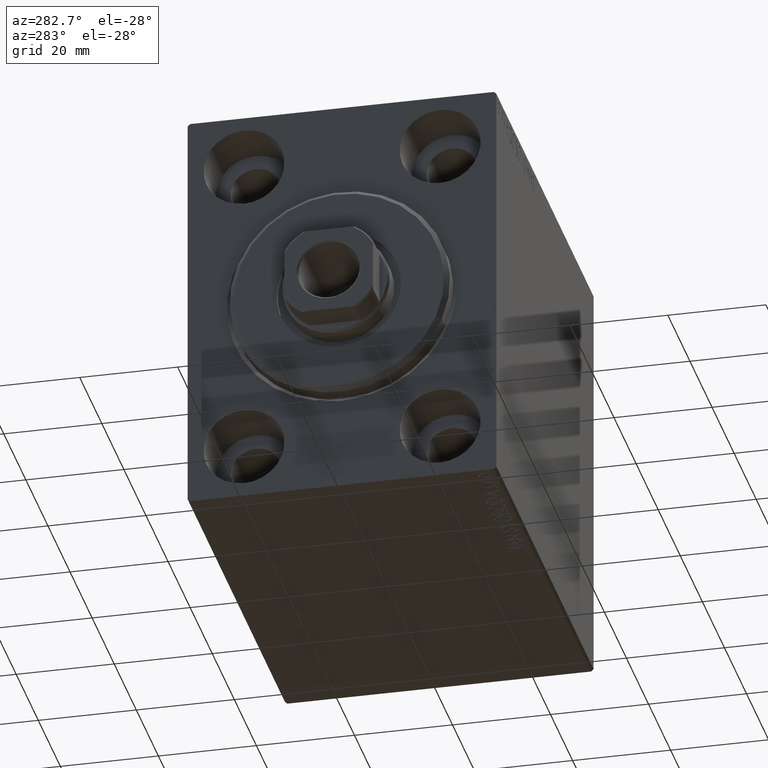
[diagram: clean part render]
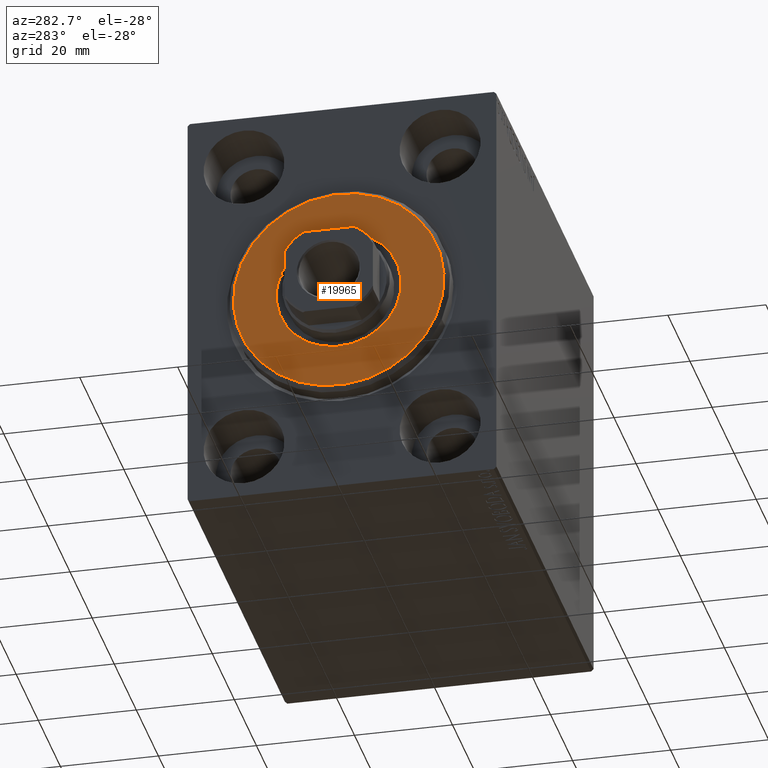
[diagram: same view with one face highlighted and labeled with its STEP entity id]
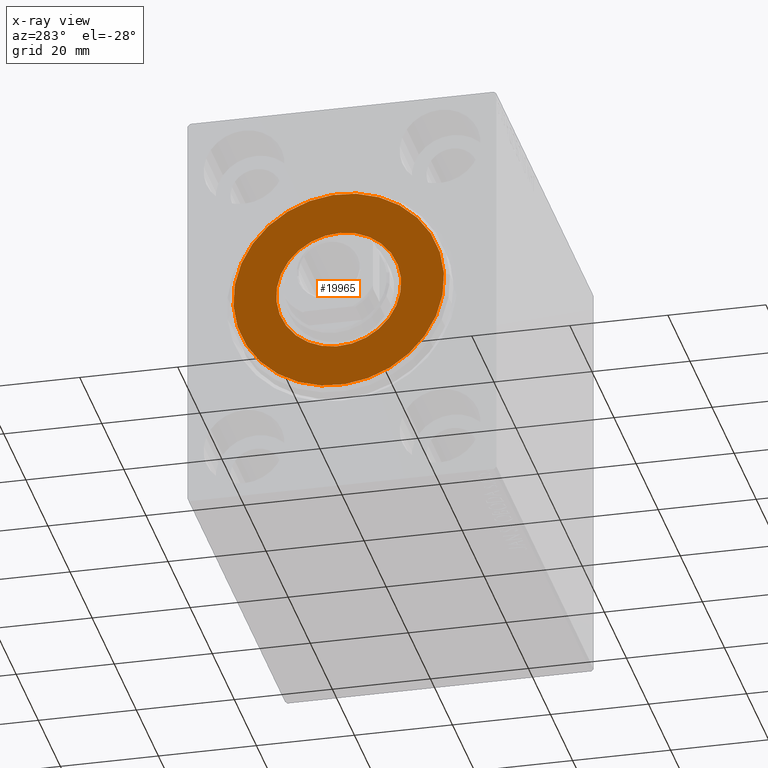
[diagram: x-ray of the same camera — body ghosted, the highlighted face saturated]
A machine part, auxiliary view. The second image highlights one B-rep face of the part: STEP entity #19965.
The next image is the same camera in x-ray: the body ghosted, the highlighted face saturated — about 0% of this face is hidden behind the body in this view.
In plain terms, the highlighted planar face has unit normal (-1, 0, 0).
Its self-contained STEP definition (entity closure, byte-faithful):
#689 = AXIS2_PLACEMENT_3D ( 'NONE', #23780, #33752, #13811 ) ;
#2702 = CARTESIAN_POINT ( 'NONE',  ( 3.000000000000000000, 0.000000000000000000, 12.75000000000000000 ) ) ;
#3480 = DIRECTION ( 'NONE',  ( 0.000000000000000000, 0.000000000000000000, -1.000000000000000000 ) ) ;
#3991 = AXIS2_PLACEMENT_3D ( 'NONE', #16864, #14180, #10641 ) ;
#6113 = PLANE ( 'NONE',  #42350 ) ;
#9421 = AXIS2_PLACEMENT_3D ( 'NONE', #33749, #30628, #37288 ) ;
#9770 = VERTEX_POINT ( 'NONE', #36782 ) ;
#10048 = DIRECTION ( 'NONE',  ( 1.000000000000000000, -0.000000000000000000, 0.000000000000000000 ) ) ;
#10641 = DIRECTION ( 'NONE',  ( 0.000000000000000000, 0.000000000000000000, -1.000000000000000000 ) ) ;
#11518 = CIRCLE ( 'NONE', #9421, 21.50000000000000355 ) ;
#13380 = EDGE_CURVE ( 'NONE', #31115, #34410, #34409, .T. ) ;
#13811 = DIRECTION ( 'NONE',  ( 0.000000000000000000, 0.000000000000000000, -1.000000000000000000 ) ) ;
#14180 = DIRECTION ( 'NONE',  ( -1.000000000000000000, 0.000000000000000000, -0.000000000000000000 ) ) ;
#14595 = AXIS2_PLACEMENT_3D ( 'NONE', #29594, #16313, #3480 ) ;
#16313 = DIRECTION ( 'NONE',  ( 1.000000000000000000, -0.000000000000000000, 0.000000000000000000 ) ) ;
#16421 = EDGE_LOOP ( 'NONE', ( #28596, #31204 ) ) ;
#16864 = CARTESIAN_POINT ( 'NONE',  ( 3.000000000000000000, 0.000000000000000000, 0.000000000000000000 ) ) ;
#19965 = ADVANCED_FACE ( 'NONE', ( #33738, #26223 ), #6113, .T. ) ;
#21455 = EDGE_CURVE ( 'NONE', #25365, #9770, #24705, .T. ) ;
#22879 = CARTESIAN_POINT ( 'NONE',  ( 3.000000000000000000, 2.694222958124177598E-15, -21.50000000000000355 ) ) ;
#22903 = CARTESIAN_POINT ( 'NONE',  ( 3.000000000000000000, 0.000000000000000000, 0.000000000000000000 ) ) ;
#23743 = CIRCLE ( 'NONE', #3991, 12.75000000000000000 ) ;
#23780 = CARTESIAN_POINT ( 'NONE',  ( 3.000000000000000000, 0.000000000000000000, 0.000000000000000000 ) ) ;
#24705 = CIRCLE ( 'NONE', #689, 12.75000000000000000 ) ;
#25365 = VERTEX_POINT ( 'NONE', #2702 ) ;
#26223 = FACE_BOUND ( 'NONE', #16421, .T. ) ;
#28596 = ORIENTED_EDGE ( 'NONE', *, *, #21455, .T. ) ;
#29155 = EDGE_CURVE ( 'NONE', #34410, #31115, #11518, .T. ) ;
#29594 = CARTESIAN_POINT ( 'NONE',  ( 3.000000000000000000, 0.000000000000000000, 0.000000000000000000 ) ) ;
#30628 = DIRECTION ( 'NONE',  ( 1.000000000000000000, -0.000000000000000000, 0.000000000000000000 ) ) ;
#31115 = VERTEX_POINT ( 'NONE', #22879 ) ;
#31204 = ORIENTED_EDGE ( 'NONE', *, *, #41787, .T. ) ;
#31326 = ORIENTED_EDGE ( 'NONE', *, *, #29155, .T. ) ;
#32949 = ORIENTED_EDGE ( 'NONE', *, *, #13380, .T. ) ;
#33738 = FACE_OUTER_BOUND ( 'NONE', #41691, .T. ) ;
#33749 = CARTESIAN_POINT ( 'NONE',  ( 3.000000000000000000, 0.000000000000000000, 0.000000000000000000 ) ) ;
#33752 = DIRECTION ( 'NONE',  ( -1.000000000000000000, 0.000000000000000000, -0.000000000000000000 ) ) ;
#34409 = CIRCLE ( 'NONE', #14595, 21.50000000000000355 ) ;
#34410 = VERTEX_POINT ( 'NONE', #38862 ) ;
#36782 = CARTESIAN_POINT ( 'NONE',  ( 3.000000000000000000, 1.561424668912874914E-15, -12.75000000000000000 ) ) ;
#37288 = DIRECTION ( 'NONE',  ( 0.000000000000000000, 0.000000000000000000, -1.000000000000000000 ) ) ;
#38862 = CARTESIAN_POINT ( 'NONE',  ( 3.000000000000000000, 0.000000000000000000, 21.50000000000000355 ) ) ;
#39721 = DIRECTION ( 'NONE',  ( 0.000000000000000000, 0.000000000000000000, -1.000000000000000000 ) ) ;
#41691 = EDGE_LOOP ( 'NONE', ( #31326, #32949 ) ) ;
#41787 = EDGE_CURVE ( 'NONE', #9770, #25365, #23743, .T. ) ;
#42350 = AXIS2_PLACEMENT_3D ( 'NONE', #22903, #10048, #39721 ) ;